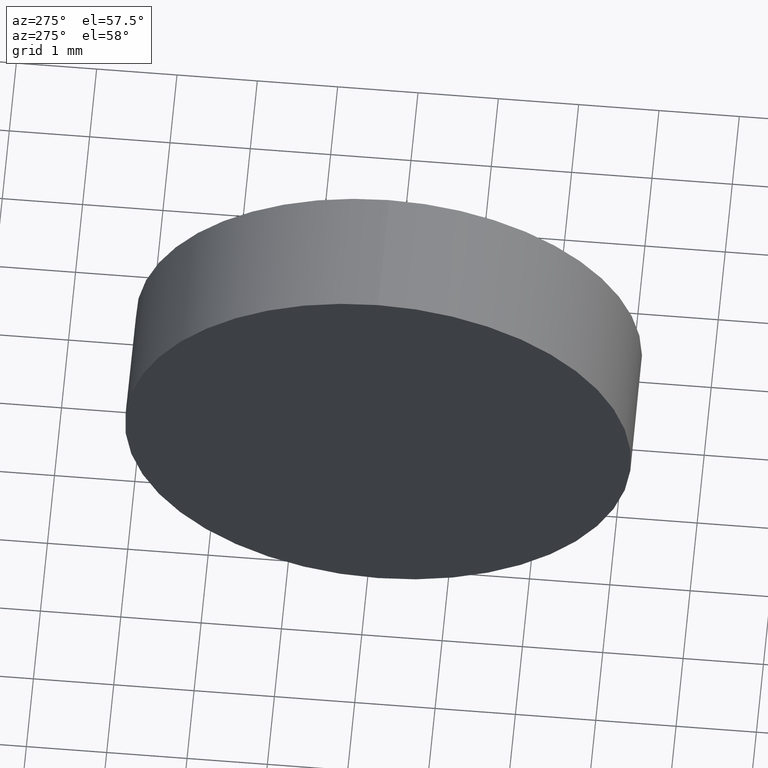
[diagram: clean part render]
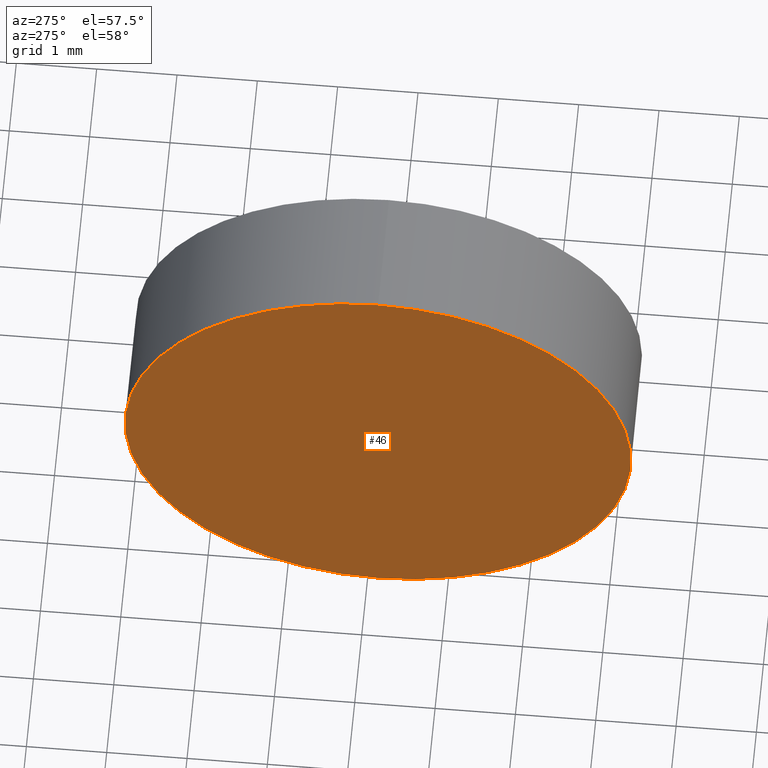
[diagram: same view with one face highlighted and labeled with its STEP entity id]
A machine part, auxiliary view. The second image highlights one B-rep face of the part: STEP entity #46.
In plain terms, the highlighted planar face has unit normal (1, 0, 0).
Its self-contained STEP definition (entity closure, byte-faithful):
#10 = DIRECTION ( 'NONE',  ( -1.000000000000000000, -0.0000000000000000000, -0.0000000000000000000 ) ) ;
#11 = EDGE_CURVE ( 'NONE', #18, #165, #87, .T. ) ;
#18 = VERTEX_POINT ( 'NONE', #19 ) ;
#19 = CARTESIAN_POINT ( 'NONE',  ( 1116.761526673283900, 408.8643062217863600, 3.149999999999986100 ) ) ;
#46 = ADVANCED_FACE ( 'NONE', ( #76 ), #144, .F. ) ;
#59 = AXIS2_PLACEMENT_3D ( 'NONE', #88, #86, #125 ) ;
#64 = EDGE_CURVE ( 'NONE', #165, #18, #120, .T. ) ;
#74 = AXIS2_PLACEMENT_3D ( 'NONE', #183, #10, #85 ) ;
#76 = FACE_OUTER_BOUND ( 'NONE', #177, .T. ) ;
#83 = DIRECTION ( 'NONE',  ( -1.000000000000000000, -0.0000000000000000000, -0.0000000000000000000 ) ) ;
#85 = DIRECTION ( 'NONE',  ( 0.0000000000000000000, 0.0000000000000000000, 1.000000000000000000 ) ) ;
#86 = DIRECTION ( 'NONE',  ( 1.000000000000000000, 0.0000000000000000000, 0.0000000000000000000 ) ) ;
#87 = CIRCLE ( 'NONE', #93, 3.149999999999986100 ) ;
#88 = CARTESIAN_POINT ( 'NONE',  ( 1116.761526673283900, 408.8643062217863600, 0.0000000000000000000 ) ) ;
#92 = ORIENTED_EDGE ( 'NONE', *, *, #11, .T. ) ;
#93 = AXIS2_PLACEMENT_3D ( 'NONE', #136, #83, #123 ) ;
#120 = CIRCLE ( 'NONE', #74, 3.149999999999986100 ) ;
#123 = DIRECTION ( 'NONE',  ( 0.0000000000000000000, 0.0000000000000000000, 1.000000000000000000 ) ) ;
#125 = DIRECTION ( 'NONE',  ( 0.0000000000000000000, 0.0000000000000000000, -1.000000000000000000 ) ) ;
#135 = ORIENTED_EDGE ( 'NONE', *, *, #64, .T. ) ;
#136 = CARTESIAN_POINT ( 'NONE',  ( 1116.761526673283900, 408.8643062217863600, 0.0000000000000000000 ) ) ;
#144 = PLANE ( 'NONE',  #59 ) ;
#165 = VERTEX_POINT ( 'NONE', #175 ) ;
#175 = CARTESIAN_POINT ( 'NONE',  ( 1116.761526673283900, 408.8643062217863600, -3.149999999999986100 ) ) ;
#177 = EDGE_LOOP ( 'NONE', ( #92, #135 ) ) ;
#183 = CARTESIAN_POINT ( 'NONE',  ( 1116.761526673283900, 408.8643062217863600, 0.0000000000000000000 ) ) ;